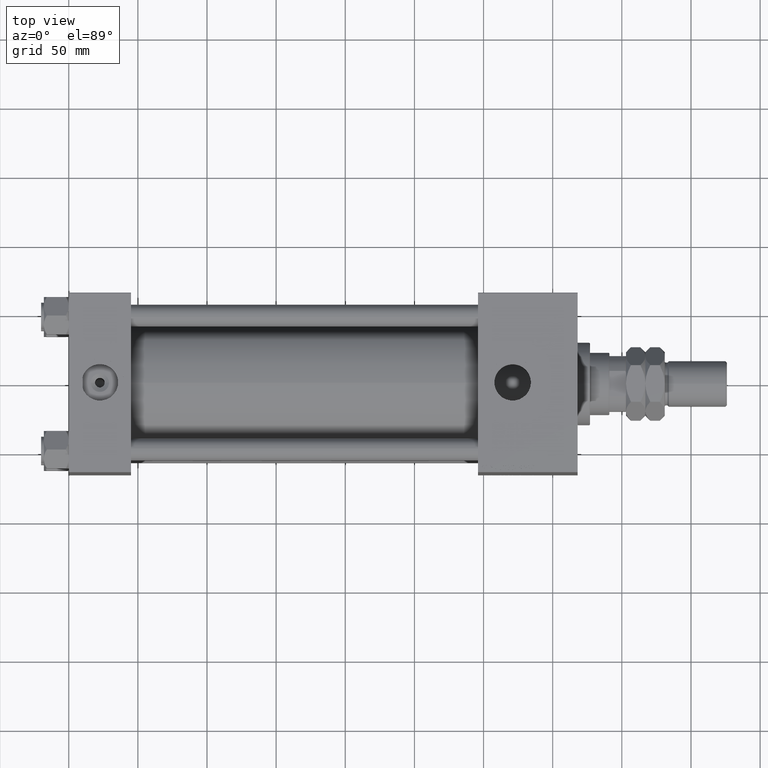
[diagram: clean part render]
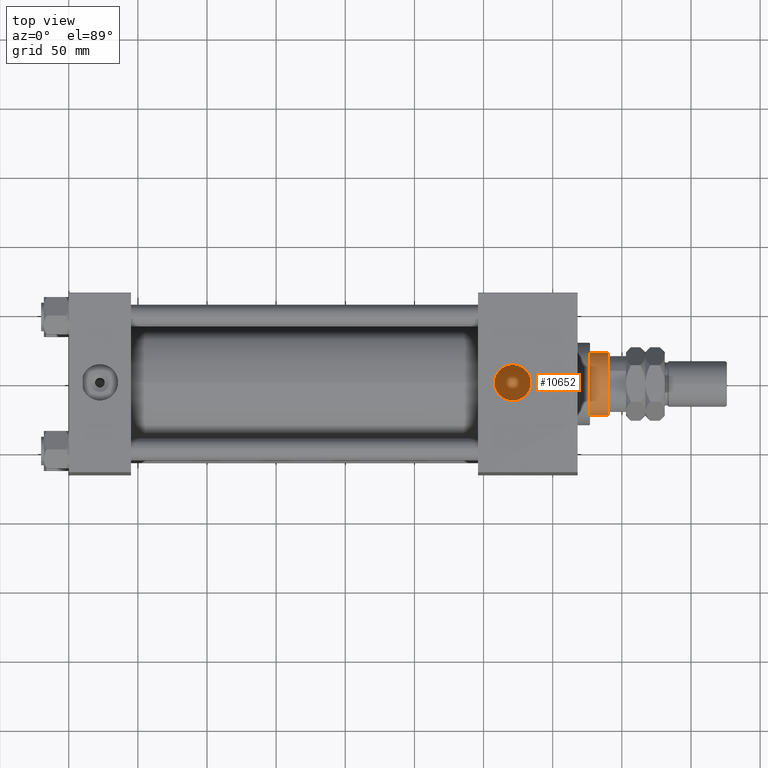
[diagram: same view with one face highlighted and labeled with its STEP entity id]
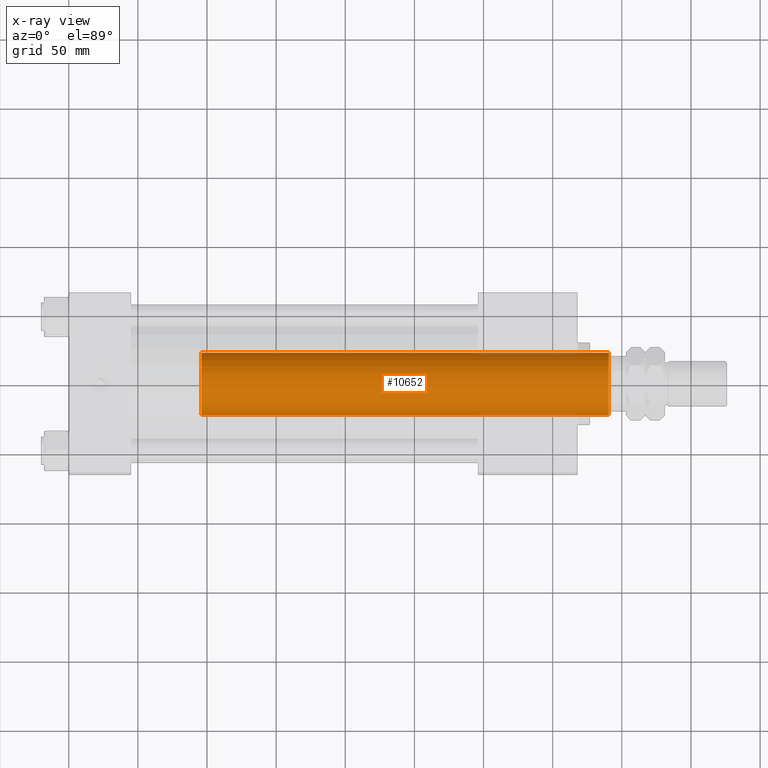
[diagram: x-ray of the same camera — body ghosted, the highlighted face saturated]
A machine part, top view. The second image highlights one B-rep face of the part: STEP entity #10652.
The next image is the same camera in x-ray: the body ghosted, the highlighted face saturated — about 2% of this face is hidden behind the body in this view.
In plain terms, the highlighted cylindrical surface (edge-blend (fillet) strip) has radius 22.5 mm, axis along (-1, 0, 0).
Its self-contained STEP definition (entity closure, byte-faithful):
#2200 = DIRECTION ( 'NONE',  ( 1.000000000000000000, 0.000000000000000000, 0.000000000000000000 ) ) ;
#3234 = EDGE_CURVE ( 'NONE', #26459, #12436, #23656, .T. ) ;
#6965 = CARTESIAN_POINT ( 'NONE',  ( 0.000000000000000000, 0.000000000000000000, 345.5000000000000568 ) ) ;
#8577 = VERTEX_POINT ( 'NONE', #45797 ) ;
#8760 = CARTESIAN_POINT ( 'NONE',  ( -22.50000000000000355, 0.000000000000000000, 346.0000000000000000 ) ) ;
#9021 = DIRECTION ( 'NONE',  ( -0.000000000000000000, -0.000000000000000000, -1.000000000000000000 ) ) ;
#10652 = ADVANCED_FACE ( 'NONE', ( #51852 ), #43673, .T. ) ;
#12226 = AXIS2_PLACEMENT_3D ( 'NONE', #31509, #47894, #27255 ) ;
#12436 = VERTEX_POINT ( 'NONE', #25865 ) ;
#12956 = EDGE_CURVE ( 'NONE', #29985, #8577, #37081, .T. ) ;
#13483 = DIRECTION ( 'NONE',  ( 1.000000000000000000, 0.000000000000000000, 0.000000000000000000 ) ) ;
#20657 = ORIENTED_EDGE ( 'NONE', *, *, #3234, .F. ) ;
#22626 = CIRCLE ( 'NONE', #42060, 22.50000000000000355 ) ;
#23656 = LINE ( 'NONE', #26835, #41677 ) ;
#25378 = CARTESIAN_POINT ( 'NONE',  ( 0.000000000000000000, 0.000000000000000000, 51.00000000000000000 ) ) ;
#25495 = ORIENTED_EDGE ( 'NONE', *, *, #12956, .T. ) ;
#25865 = CARTESIAN_POINT ( 'NONE',  ( 22.50000000000000355, 2.755455298081545172E-15, 51.00000000000000000 ) ) ;
#26459 = VERTEX_POINT ( 'NONE', #39557 ) ;
#26835 = CARTESIAN_POINT ( 'NONE',  ( 22.50000000000000355, 2.755455298081545172E-15, 346.0000000000000000 ) ) ;
#27255 = DIRECTION ( 'NONE',  ( -1.000000000000000000, 0.000000000000000000, 0.000000000000000000 ) ) ;
#29985 = VERTEX_POINT ( 'NONE', #34693 ) ;
#31509 = CARTESIAN_POINT ( 'NONE',  ( 0.000000000000000000, 0.000000000000000000, 346.0000000000000000 ) ) ;
#34693 = CARTESIAN_POINT ( 'NONE',  ( -22.50000000000000355, 0.000000000000000000, 345.5000000000000568 ) ) ;
#36016 = VECTOR ( 'NONE', #9021, 1000.000000000000000 ) ;
#37081 = LINE ( 'NONE', #8760, #36016 ) ;
#39244 = DIRECTION ( 'NONE',  ( 0.000000000000000000, 0.000000000000000000, -1.000000000000000000 ) ) ;
#39557 = CARTESIAN_POINT ( 'NONE',  ( 22.50000000000000355, 2.755455298081545172E-15, 345.5000000000000568 ) ) ;
#40612 = EDGE_CURVE ( 'NONE', #8577, #12436, #22626, .T. ) ;
#41643 = ORIENTED_EDGE ( 'NONE', *, *, #40612, .T. ) ;
#41677 = VECTOR ( 'NONE', #42994, 1000.000000000000000 ) ;
#42060 = AXIS2_PLACEMENT_3D ( 'NONE', #25378, #48945, #13483 ) ;
#42994 = DIRECTION ( 'NONE',  ( -0.000000000000000000, -0.000000000000000000, -1.000000000000000000 ) ) ;
#43673 = CYLINDRICAL_SURFACE ( 'NONE', #12226, 22.50000000000000355 ) ;
#44063 = AXIS2_PLACEMENT_3D ( 'NONE', #6965, #39244, #2200 ) ;
#44291 = ORIENTED_EDGE ( 'NONE', *, *, #51965, .T. ) ;
#45797 = CARTESIAN_POINT ( 'NONE',  ( -22.50000000000000355, 0.000000000000000000, 51.00000000000000000 ) ) ;
#46004 = EDGE_LOOP ( 'NONE', ( #20657, #44291, #25495, #41643 ) ) ;
#47894 = DIRECTION ( 'NONE',  ( -0.000000000000000000, -0.000000000000000000, -1.000000000000000000 ) ) ;
#48360 = CIRCLE ( 'NONE', #44063, 22.50000000000000355 ) ;
#48945 = DIRECTION ( 'NONE',  ( 0.000000000000000000, 0.000000000000000000, 1.000000000000000000 ) ) ;
#51852 = FACE_OUTER_BOUND ( 'NONE', #46004, .T. ) ;
#51965 = EDGE_CURVE ( 'NONE', #26459, #29985, #48360, .T. ) ;